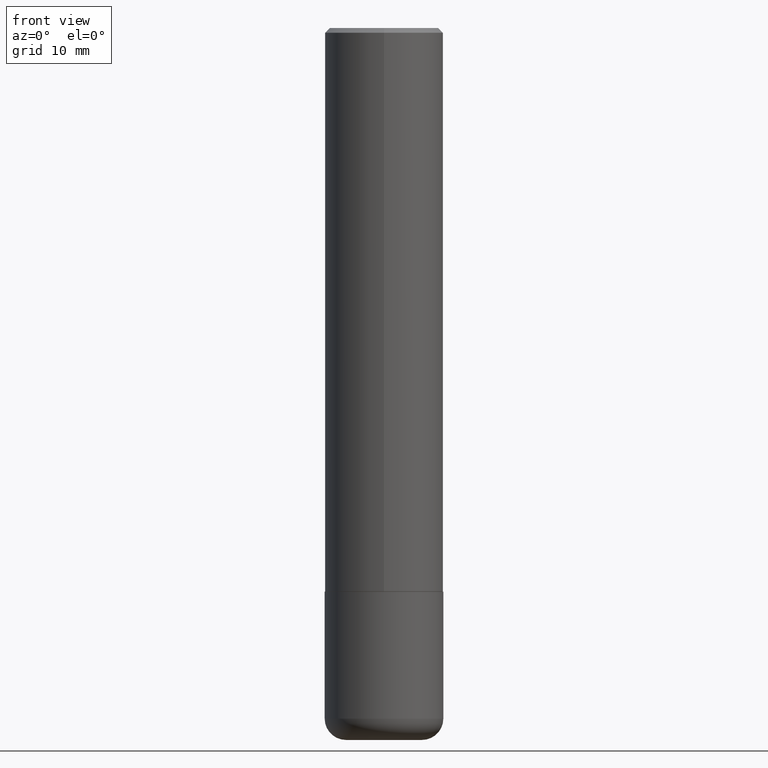
[diagram: clean part render]
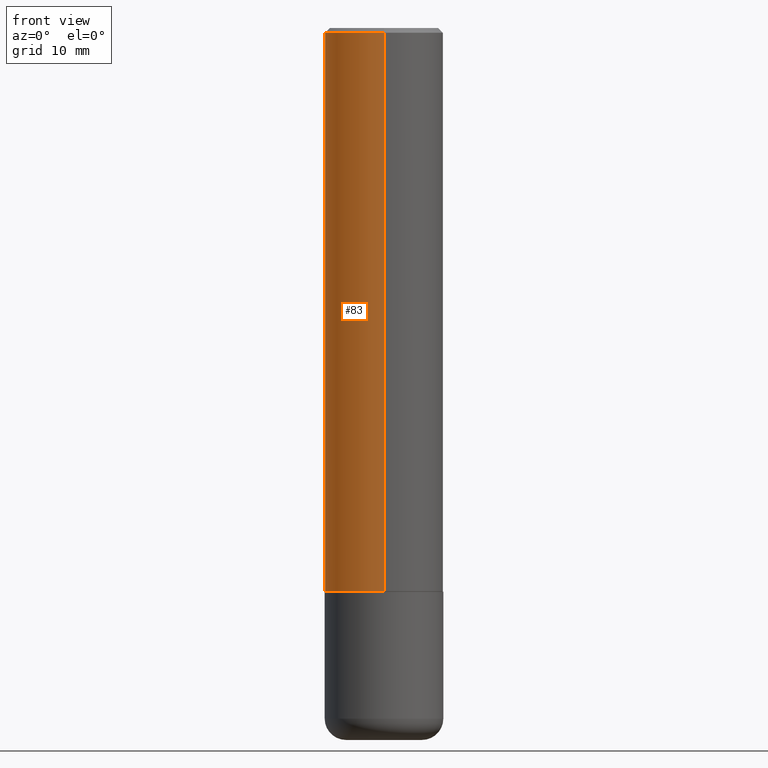
[diagram: same view with one face highlighted and labeled with its STEP entity id]
A machine part, front view. The second image highlights one B-rep face of the part: STEP entity #83.
In plain terms, the highlighted cylindrical surface (partial cylindrical patch) has radius 6.35 mm, axis along (-0, 0, 1).
Its self-contained STEP definition (entity closure, byte-faithful):
#4 = VECTOR ( 'NONE', #28, 39.37007874015748143 ) ;
#15 = VERTEX_POINT ( 'NONE', #150 ) ;
#20 = VECTOR ( 'NONE', #389, 39.37007874015748143 ) ;
#23 = EDGE_CURVE ( 'NONE', #15, #108, #239, .T. ) ;
#26 = CIRCLE ( 'NONE', #283, 0.2500000000000000000 ) ;
#28 = DIRECTION ( 'NONE',  ( -2.444433044876418787E-29, 3.492964607989102264E-15, 1.000000000000000000 ) ) ;
#48 = CARTESIAN_POINT ( 'NONE',  ( 1.776356839400280836E-15, 0.2499999999999919786, -2.374000000000000998 ) ) ;
#56 = CARTESIAN_POINT ( 'NONE',  ( -1.745740669421567467E-15, -0.2500000000000001110, 8.732411519972759604E-16 ) ) ;
#83 = ADVANCED_FACE ( 'NONE', ( #183 ), #417, .T. ) ;
#89 = CARTESIAN_POINT ( 'NONE',  ( 4.888866089752851166E-31, -6.985929215978223263E-17, -0.02000000000000005593 ) ) ;
#108 = VERTEX_POINT ( 'NONE', #124 ) ;
#123 = DIRECTION ( 'NONE',  ( -6.982962677686265922E-15, -1.000000000000000000, 3.500180241882337261E-15 ) ) ;
#124 = CARTESIAN_POINT ( 'NONE',  ( -1.715124499442882299E-15, -0.2500000000000000555, -0.01999999999999918163 ) ) ;
#139 = EDGE_LOOP ( 'NONE', ( #167, #360, #333, #363 ) ) ;
#150 = CARTESIAN_POINT ( 'NONE',  ( -1.745740669421510471E-15, -0.2500000000000085487, -2.373999999999999222 ) ) ;
#166 = DIRECTION ( 'NONE',  ( -6.982962677686265922E-15, -1.000000000000000000, 3.278217592397112312E-15 ) ) ;
#167 = ORIENTED_EDGE ( 'NONE', *, *, #252, .F. ) ;
#178 = CIRCLE ( 'NONE', #318, 0.2500000000000002776 ) ;
#183 = FACE_OUTER_BOUND ( 'NONE', #139, .T. ) ;
#184 = AXIS2_PLACEMENT_3D ( 'NONE', #315, #221, #319 ) ;
#189 = CARTESIAN_POINT ( 'NONE',  ( 1.776356839400251254E-15, 0.2500000000000001110, -8.732411519972759604E-16 ) ) ;
#221 = DIRECTION ( 'NONE',  ( -2.444433044876418787E-29, 3.492964607989102264E-15, 1.000000000000000000 ) ) ;
#239 = LINE ( 'NONE', #56, #4 ) ;
#240 = EDGE_CURVE ( 'NONE', #256, #15, #178, .T. ) ;
#247 = CARTESIAN_POINT ( 'NONE',  ( 1.745740669421566875E-15, 0.2499999999999999167, -0.02000000000000093023 ) ) ;
#252 = EDGE_CURVE ( 'NONE', #256, #302, #328, .T. ) ;
#255 = CARTESIAN_POINT ( 'NONE',  ( 5.803084048536618741E-29, -8.292297979366129591E-15, -2.374000000000000110 ) ) ;
#256 = VERTEX_POINT ( 'NONE', #48 ) ;
#264 = DIRECTION ( 'NONE',  ( -2.444433044876418787E-29, 3.492964607989102264E-15, 1.000000000000000000 ) ) ;
#283 = AXIS2_PLACEMENT_3D ( 'NONE', #89, #344, #123 ) ;
#302 = VERTEX_POINT ( 'NONE', #247 ) ;
#315 = CARTESIAN_POINT ( 'NONE',  ( 0.000000000000000000, 0.000000000000000000, 0.000000000000000000 ) ) ;
#318 = AXIS2_PLACEMENT_3D ( 'NONE', #255, #264, #166 ) ;
#319 = DIRECTION ( 'NONE',  ( -6.982962677686266711E-15, -1.000000000000000000, 3.492964607989102264E-15 ) ) ;
#328 = LINE ( 'NONE', #189, #20 ) ;
#333 = ORIENTED_EDGE ( 'NONE', *, *, #23, .T. ) ;
#344 = DIRECTION ( 'NONE',  ( -2.444433044876418787E-29, 3.492964607989102264E-15, 1.000000000000000000 ) ) ;
#360 = ORIENTED_EDGE ( 'NONE', *, *, #240, .T. ) ;
#363 = ORIENTED_EDGE ( 'NONE', *, *, #375, .F. ) ;
#375 = EDGE_CURVE ( 'NONE', #302, #108, #26, .T. ) ;
#389 = DIRECTION ( 'NONE',  ( -2.444433044876418787E-29, 3.492964607989102264E-15, 1.000000000000000000 ) ) ;
#417 = CYLINDRICAL_SURFACE ( 'NONE', #184, 0.2500000000000001110 ) ;